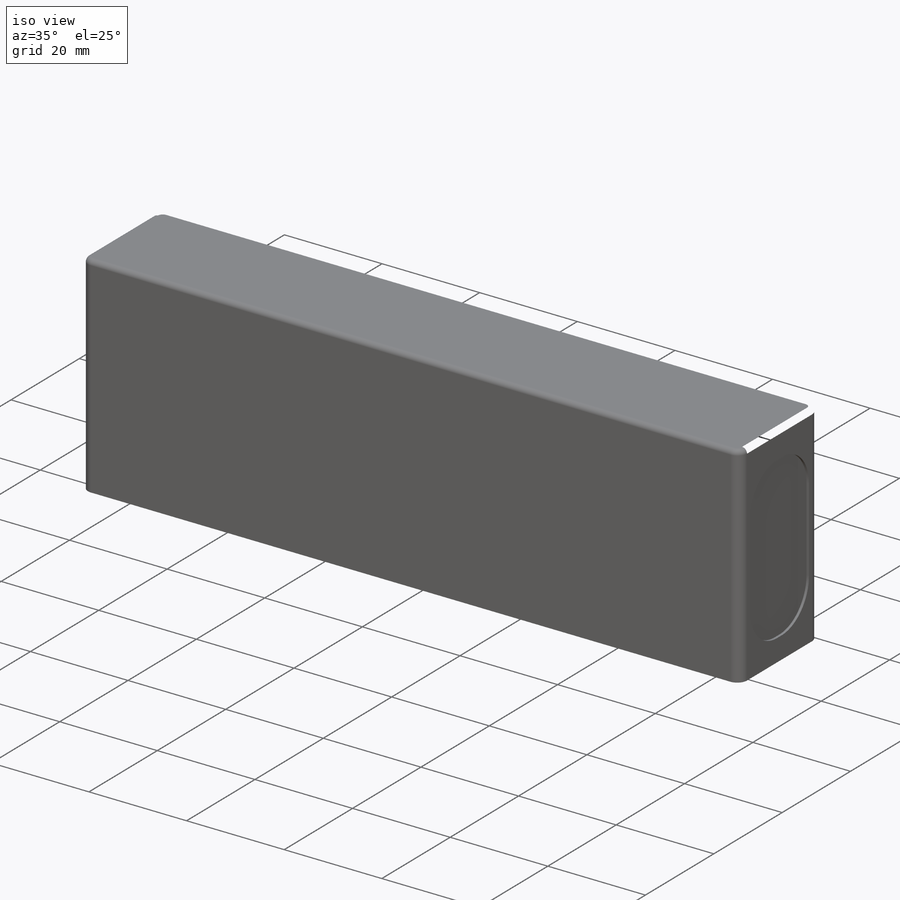
[diagram: iso view]
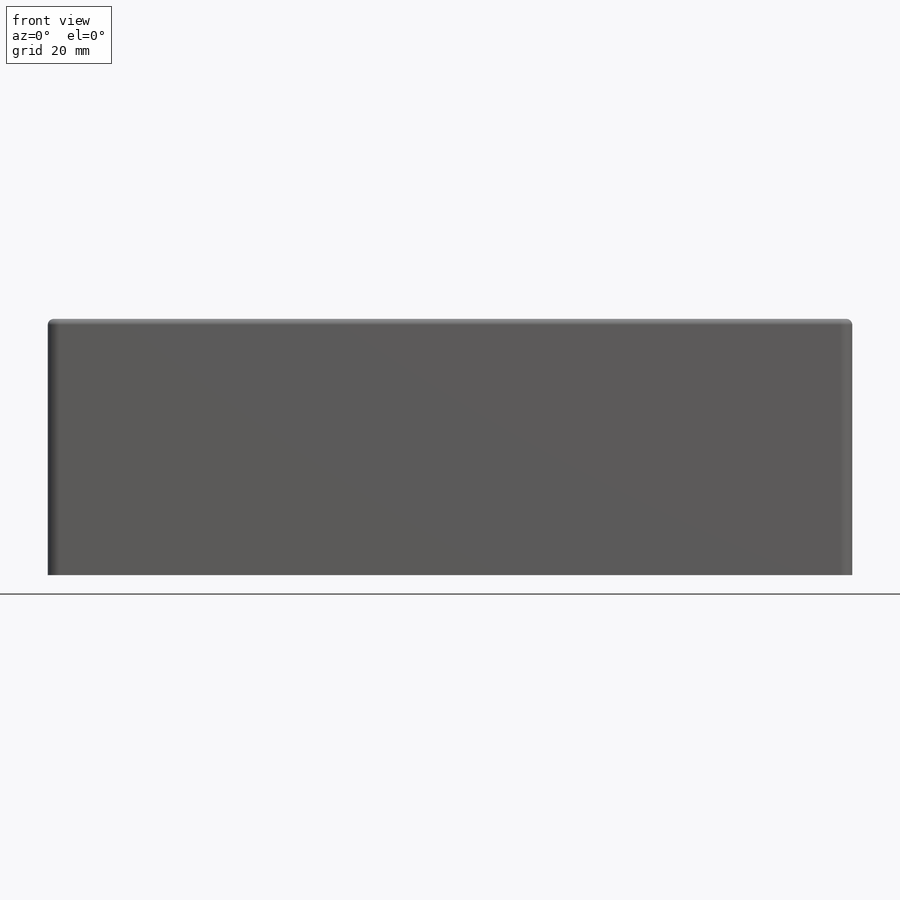
[diagram: front view]
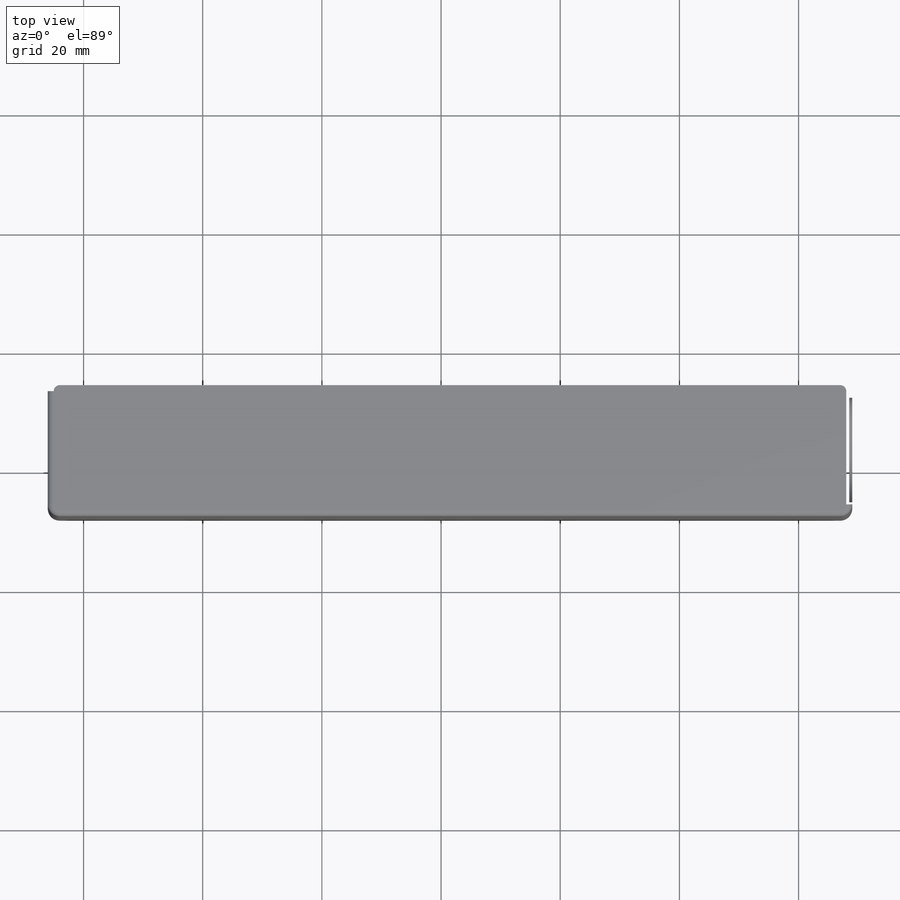
[diagram: top view]
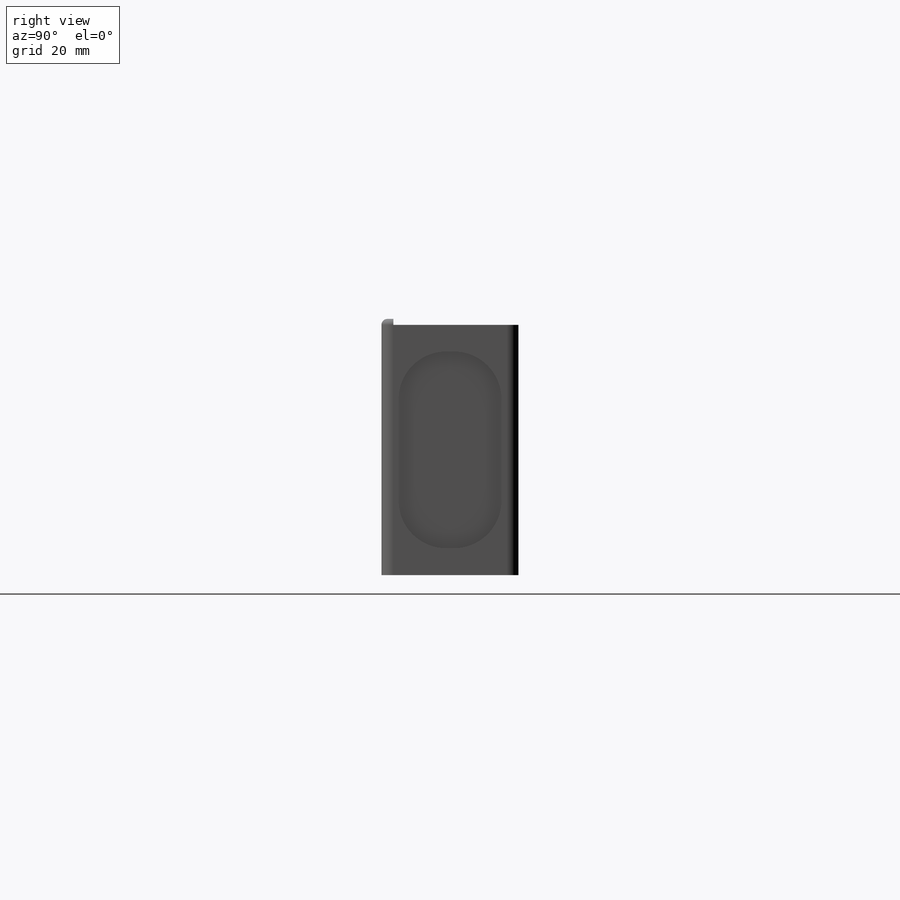
[diagram: right view]
SOLIDWORKS PART (.sldprt)
format: sldprt  version: not decoded by parser v0  size: 1,663,488 bytes
history: native  units: mm
features: sketch x4, cut_extrude x2, fillet x2, material x1, plane x1, extrude x1 (+11 scaffold rows collapsed)
feature tree (22):
  scaffold x11  (default folders/planes/origin — collapsed)
  material  "Material <not specified>"
  plane  "Plane1"
  sketch  "Sketch1"  dims[D1=44.0mm D2=135.0mm]
  extrude  "Boss-Extrude1"  Depth=23mm
  sketch  "Sketch2"  dims[c1.D3=8.0mm c1.D1=39.0mm c2.D1=90.0deg c3.D1=17.25mm c3.D2=23.0mm]
  cut_extrude  "Cut-Extrude1"  Depth=0.5mm
  sketch  "Sketch3"  dims[D3=8.0mm D1=17.25mm D2=23.0mm]
  cut_extrude  "Cut-Extrude2"  Depth=0.5mm
  fillet  "Fillet1"  Radius=2mm
  fillet  "Fillet2"  Radius=1mm
  sketch  "Sketch4"  dims[D1=~28.210706mm]
decode coverage: 9 of 9 modeling features carry decoded parameters
note: ~ marks probable driven/reference dimensions
note: suppression state not decoded; provenance and decode notes live in map.json
